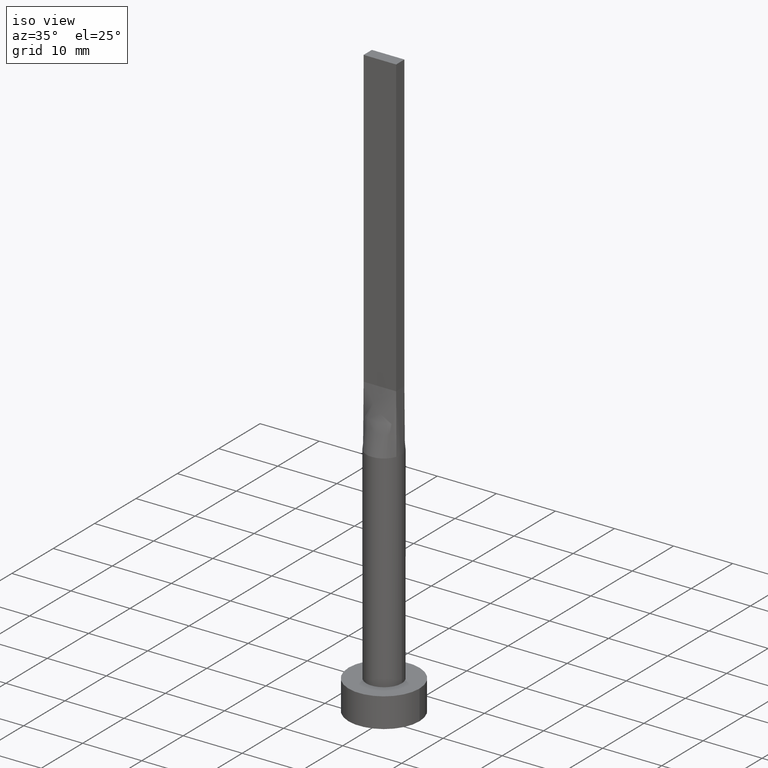
[diagram: clean part render]
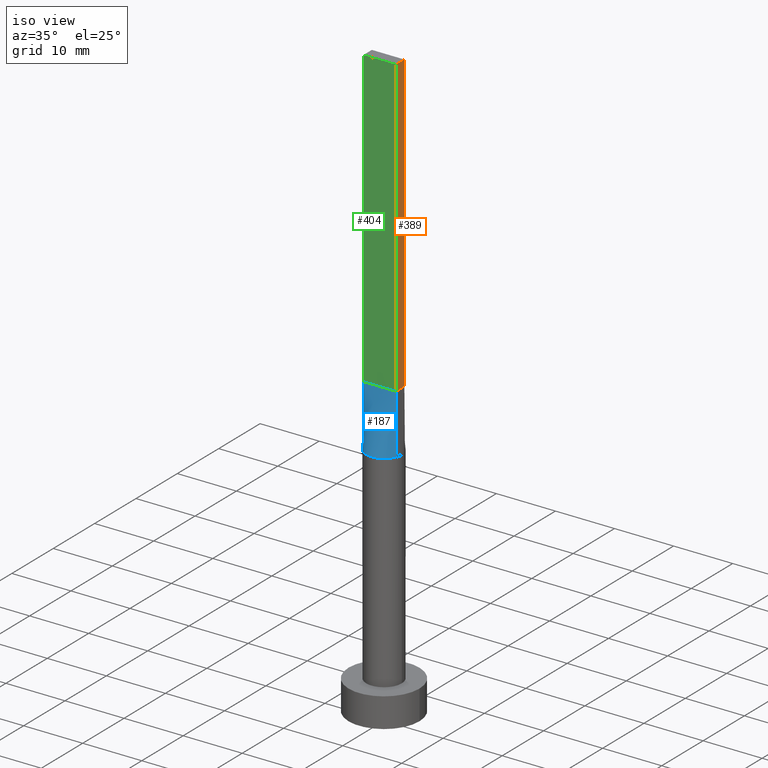
[diagram: same view with three faces highlighted in distinct colors, each labeled with its STEP entity id]
A machine part, iso view with three faces highlighted in distinct colors.
Their STEP definitions:

[orange] entity #389 — the highlighted planar face has unit normal (-1, -0, 0).
#3 = VERTEX_POINT ( 'NONE', #186 ) ;
#4 = FACE_OUTER_BOUND ( 'NONE', #559, .T. ) ;
#30 = EDGE_CURVE ( 'NONE', #494, #189, #259, .T. ) ;
#52 = VECTOR ( 'NONE', #315, 1000.000000000000000 ) ;
#59 = CARTESIAN_POINT ( 'NONE',  ( 2.750000000000000000, -0.9999999999999997780, 50.00000000000000000 ) ) ;
#72 = DIRECTION ( 'NONE',  ( -2.168404344971008868E-16, 1.000000000000000000, 0.000000000000000000 ) ) ;
#82 = CARTESIAN_POINT ( 'NONE',  ( 2.749999999999999556, 1.000000000000000000, 100.0000000000000000 ) ) ;
#86 = EDGE_CURVE ( 'NONE', #146, #3, #485, .T. ) ;
#98 = CARTESIAN_POINT ( 'NONE',  ( 2.750000000000000000, -0.9999999999999997780, 100.0000000000000000 ) ) ;
#109 = CARTESIAN_POINT ( 'NONE',  ( 2.750000000000000000, -0.9999999999999997780, 100.0000000000000000 ) ) ;
#129 = DIRECTION ( 'NONE',  ( 2.168404344971008868E-16, -1.000000000000000000, 0.000000000000000000 ) ) ;
#144 = AXIS2_PLACEMENT_3D ( 'NONE', #353, #440, #129 ) ;
#146 = VERTEX_POINT ( 'NONE', #446 ) ;
#175 = LINE ( 'NONE', #309, #52 ) ;
#179 = ORIENTED_EDGE ( 'NONE', *, *, #469, .F. ) ;
#186 = CARTESIAN_POINT ( 'NONE',  ( 2.749999999999999556, 1.000000000000000000, 50.00000000000000000 ) ) ;
#189 = VERTEX_POINT ( 'NONE', #59 ) ;
#230 = ORIENTED_EDGE ( 'NONE', *, *, #30, .T. ) ;
#235 = VECTOR ( 'NONE', #250, 1000.000000000000000 ) ;
#250 = DIRECTION ( 'NONE',  ( -0.000000000000000000, -0.000000000000000000, -1.000000000000000000 ) ) ;
#259 = LINE ( 'NONE', #98, #265 ) ;
#265 = VECTOR ( 'NONE', #445, 1000.000000000000000 ) ;
#268 = PLANE ( 'NONE',  #144 ) ;
#289 = LINE ( 'NONE', #472, #427 ) ;
#309 = CARTESIAN_POINT ( 'NONE',  ( 2.749999999999999556, 1.000000000000000000, 50.00000000000000000 ) ) ;
#315 = DIRECTION ( 'NONE',  ( -2.168404344971008868E-16, 1.000000000000000000, -0.000000000000000000 ) ) ;
#353 = CARTESIAN_POINT ( 'NONE',  ( 2.750000000000000000, -0.9999999999999997780, 100.0000000000000000 ) ) ;
#389 = ADVANCED_FACE ( 'NONE', ( #4 ), #268, .F. ) ;
#409 = ORIENTED_EDGE ( 'NONE', *, *, #527, .T. ) ;
#420 = ORIENTED_EDGE ( 'NONE', *, *, #86, .F. ) ;
#427 = VECTOR ( 'NONE', #72, 1000.000000000000000 ) ;
#440 = DIRECTION ( 'NONE',  ( -1.000000000000000000, -2.168404344971008868E-16, 0.000000000000000000 ) ) ;
#445 = DIRECTION ( 'NONE',  ( -0.000000000000000000, -0.000000000000000000, -1.000000000000000000 ) ) ;
#446 = CARTESIAN_POINT ( 'NONE',  ( 2.749999999999999556, 1.000000000000000000, 100.0000000000000000 ) ) ;
#469 = EDGE_CURVE ( 'NONE', #494, #146, #289, .T. ) ;
#472 = CARTESIAN_POINT ( 'NONE',  ( 2.750000000000000000, -0.9999999999999997780, 100.0000000000000000 ) ) ;
#485 = LINE ( 'NONE', #82, #235 ) ;
#494 = VERTEX_POINT ( 'NONE', #109 ) ;
#527 = EDGE_CURVE ( 'NONE', #189, #3, #175, .T. ) ;
#559 = EDGE_LOOP ( 'NONE', ( #409, #420, #179, #230 ) ) ;

[blue] entity #187 — the highlighted face is a freeform B-spline surface patch.
#21 = VERTEX_POINT ( 'NONE', #317 ) ;
#43 = CARTESIAN_POINT ( 'NONE',  ( 0.6998073349918603192, -2.936959335800557902, 40.00000000000000711 ) ) ;
#48 = ORIENTED_EDGE ( 'NONE', *, *, #365, .T. ) ;
#59 = CARTESIAN_POINT ( 'NONE',  ( 2.750000000000000000, -0.9999999999999997780, 50.00000000000000000 ) ) ;
#61 = CARTESIAN_POINT ( 'NONE',  ( 0.4583333333333332593, -0.9999999999999995559, 50.00000000000000000 ) ) ;
#66 = CARTESIAN_POINT ( 'NONE',  ( 2.819380270465311700, -1.025229189260112417, 40.00000000000000000 ) ) ;
#89 = CARTESIAN_POINT ( 'NONE',  ( 0.3502136323054372835, -3.000000000000000444, 39.99999999999998579 ) ) ;
#94 = LINE ( 'NONE', #579, #455 ) ;
#108 = ORIENTED_EDGE ( 'NONE', *, *, #500, .F. ) ;
#113 = ORIENTED_EDGE ( 'NONE', *, *, #488, .T. ) ;
#130 = CARTESIAN_POINT ( 'NONE',  ( -2.625980160873452540, -1.476334031700885507, 40.00000000000000711 ) ) ;
#136 = CARTESIAN_POINT ( 'NONE',  ( -1.627925520694712525, -2.539128397820340055, 39.99999999999999289 ) ) ;
#141 = CARTESIAN_POINT ( 'NONE',  ( -1.145833333333333259, -0.9999999999999995559, 50.00000000000000711 ) ) ;
#151 = CARTESIAN_POINT ( 'NONE',  ( 0.9166666666666665186, -0.9999999999999995559, 50.00000000000000000 ) ) ;
#154 = DIRECTION ( 'NONE',  ( 1.000000000000000000, -7.885106708985487801E-17, 0.000000000000000000 ) ) ;
#174 = VERTEX_POINT ( 'NONE', #266 ) ;
#176 = DIRECTION ( 'NONE',  ( -0.006937837988376364777, 0.002522850177591326286, 0.9999727504442450510 ) ) ;
#178 = CARTESIAN_POINT ( 'NONE',  ( -2.291666666666666519, -0.9999999999999995559, 50.00000000000000000 ) ) ;
#184 = CIRCLE ( 'NONE', #200, 3.000000000000000444 ) ;
#187 = ADVANCED_FACE ( 'NONE', ( #254 ), #522, .T. ) ;
#188 = CARTESIAN_POINT ( 'NONE',  ( 1.145833333333333259, -0.9999999999999995559, 50.00000000000000000 ) ) ;
#189 = VERTEX_POINT ( 'NONE', #59 ) ;
#193 = CARTESIAN_POINT ( 'NONE',  ( 2.291666666666666519, -0.9999999999999995559, 50.00000000000000000 ) ) ;
#200 = AXIS2_PLACEMENT_3D ( 'NONE', #462, #286, #421 ) ;
#209 = CARTESIAN_POINT ( 'NONE',  ( -1.604166666666666519, -0.9999999999999995559, 50.00000000000000000 ) ) ;
#224 = CARTESIAN_POINT ( 'NONE',  ( -2.750000000000000000, -0.9999999999999993339, 50.00000000000000000 ) ) ;
#227 = CARTESIAN_POINT ( 'NONE',  ( 1.338960936578149630, -2.706038443291638007, 40.00000000000000711 ) ) ;
#229 = CARTESIAN_POINT ( 'NONE',  ( 1.604166666666666741, -0.9999999999999995559, 50.00000000000000000 ) ) ;
#243 = VERTEX_POINT ( 'NONE', #476 ) ;
#254 = FACE_OUTER_BOUND ( 'NONE', #370, .T. ) ;
#260 = CARTESIAN_POINT ( 'NONE',  ( 0.2291666666666665464, -0.9999999999999995559, 50.00000000000000711 ) ) ;
#266 = CARTESIAN_POINT ( 'NONE',  ( -2.750000000000000000, -0.9999999999999993339, 50.00000000000000000 ) ) ;
#269 = CARTESIAN_POINT ( 'NONE',  ( -2.784690135232656072, -1.012614594630055764, 45.00000000000000000 ) ) ;
#271 = VECTOR ( 'NONE', #367, 1000.000000000000227 ) ;
#281 = VECTOR ( 'NONE', #154, 1000.000000000000000 ) ;
#286 = DIRECTION ( 'NONE',  ( 0.000000000000000000, 0.000000000000000000, 1.000000000000000000 ) ) ;
#290 = ORIENTED_EDGE ( 'NONE', *, *, #375, .T. ) ;
#308 = CARTESIAN_POINT ( 'NONE',  ( -0.4583333333333333703, -0.9999999999999995559, 50.00000000000000711 ) ) ;
#311 = LINE ( 'NONE', #269, #271 ) ;
#313 = CARTESIAN_POINT ( 'NONE',  ( -2.115507543051069472, -2.149870311632975373, 40.00000000000000000 ) ) ;
#317 = CARTESIAN_POINT ( 'NONE',  ( -2.819413526938078007, -1.025241406939941369, 40.00000000000000000 ) ) ;
#319 = CARTESIAN_POINT ( 'NONE',  ( -1.338960936578150518, -2.706038443291638007, 40.00000000000001421 ) ) ;
#323 = CARTESIAN_POINT ( 'NONE',  ( -2.819380270465311700, -1.025229189260111973, 40.00000000000000000 ) ) ;
#325 = CARTESIAN_POINT ( 'NONE',  ( -0.3502136323054380052, -3.000000000000000888, 40.00000000000000000 ) ) ;
#328 = CARTESIAN_POINT ( 'NONE',  ( 1.627925520694712080, -2.539128397820341831, 39.99999999999999289 ) ) ;
#334 = CARTESIAN_POINT ( 'NONE',  ( 2.750000000000000000, -0.9999999999999997780, 50.00000000000000000 ) ) ;
#365 = EDGE_CURVE ( 'NONE', #243, #189, #94, .T. ) ;
#367 = DIRECTION ( 'NONE',  ( -0.006937837988376364777, -0.002522850177591326286, -0.9999727504442450510 ) ) ;
#369 = CARTESIAN_POINT ( 'NONE',  ( -1.833333333333333037, -0.9999999999999995559, 50.00000000000000000 ) ) ;
#370 = EDGE_LOOP ( 'NONE', ( #113, #48, #108, #290 ) ) ;
#372 = CARTESIAN_POINT ( 'NONE',  ( -0.9166666666666666297, -0.9999999999999995559, 50.00000000000000711 ) ) ;
#375 = EDGE_CURVE ( 'NONE', #174, #21, #311, .T. ) ;
#378 = CARTESIAN_POINT ( 'NONE',  ( 1.833333333333333481, -0.9999999999999995559, 50.00000000000000000 ) ) ;
#419 = CARTESIAN_POINT ( 'NONE',  ( 2.314486317179579533, -1.928337902455807606, 40.00000000000000000 ) ) ;
#421 = DIRECTION ( 'NONE',  ( 1.000000000000000000, 0.000000000000000000, 0.000000000000000000 ) ) ;
#428 = CARTESIAN_POINT ( 'NONE',  ( 2.625980160873452984, -1.476334031700886618, 40.00000000000000000 ) ) ;
#442 = CARTESIAN_POINT ( 'NONE',  ( -0.2291666666666667684, -0.9999999999999995559, 50.00000000000000711 ) ) ;
#449 = CARTESIAN_POINT ( 'NONE',  ( -2.520833333333333037, -0.9999999999999993339, 50.00000000000000000 ) ) ;
#450 = CARTESIAN_POINT ( 'NONE',  ( -2.750000000000000000, -0.9999999999999993339, 50.00000000000000000 ) ) ;
#455 = VECTOR ( 'NONE', #176, 1000.000000000000227 ) ;
#459 = CARTESIAN_POINT ( 'NONE',  ( 2.739088299662391979, -1.246032108968142982, 40.00000000000000000 ) ) ;
#462 = CARTESIAN_POINT ( 'NONE',  ( 0.000000000000000000, 0.000000000000000000, 40.00000000000000000 ) ) ;
#476 = CARTESIAN_POINT ( 'NONE',  ( 2.819430526142641558, -1.025247683279450817, 40.00000000000000000 ) ) ;
#488 = EDGE_CURVE ( 'NONE', #21, #243, #184, .T. ) ;
#500 = EDGE_CURVE ( 'NONE', #174, #189, #558, .T. ) ;
#504 = CARTESIAN_POINT ( 'NONE',  ( 2.115507543051068140, -2.149870311632976705, 39.99999999999998579 ) ) ;
#522 = B_SPLINE_SURFACE_WITH_KNOTS ( 'NONE', 3, 1, ( 
 ( #323, #224 ),
 ( #538, #449 ),
 ( #130, #178 ),
 ( #548, #369 ),
 ( #313, #209 ),
 ( #136, #141 ),
 ( #319, #372 ),
 ( #551, #308 ),
 ( #325, #442 ),
 ( #89, #260 ),
 ( #43, #61 ),
 ( #227, #151 ),
 ( #328, #188 ),
 ( #504, #229 ),
 ( #419, #378 ),
 ( #428, #193 ),
 ( #459, #555 ),
 ( #66, #334 ) ),
 .UNSPECIFIED., .F., .F., .F.,
 ( 4, 2, 2, 2, 2, 2, 2, 2, 4 ),
 ( 2, 2 ),
 ( 0.000000000000000000, 0.1250000000000000000, 0.2500000000000000000, 0.3750000000000000000, 0.5000000000000000000, 0.6250000000000000000, 0.7500000000000000000, 0.8750000000000000000, 1.000000000000000000 ),
 ( 0.000000000000000000, 1.000000000000000000 ),
 .UNSPECIFIED. ) ;
#538 = CARTESIAN_POINT ( 'NONE',  ( -2.739088299662391979, -1.246032108968140983, 39.99999999999999289 ) ) ;
#548 = CARTESIAN_POINT ( 'NONE',  ( -2.314486317179578645, -1.928337902455806496, 40.00000000000000000 ) ) ;
#551 = CARTESIAN_POINT ( 'NONE',  ( -0.6998073349918614294, -2.936959335800558346, 40.00000000000000711 ) ) ;
#555 = CARTESIAN_POINT ( 'NONE',  ( 2.520833333333333037, -0.9999999999999995559, 50.00000000000000000 ) ) ;
#558 = LINE ( 'NONE', #450, #281 ) ;
#579 = CARTESIAN_POINT ( 'NONE',  ( 2.784690135232656072, -1.012614594630056208, 45.00000000000000000 ) ) ;

[green] entity #404 — the highlighted planar face has unit normal (0, 1, -0).
#30 = EDGE_CURVE ( 'NONE', #494, #189, #259, .T. ) ;
#51 = ORIENTED_EDGE ( 'NONE', *, *, #500, .T. ) ;
#59 = CARTESIAN_POINT ( 'NONE',  ( 2.750000000000000000, -0.9999999999999997780, 50.00000000000000000 ) ) ;
#69 = CARTESIAN_POINT ( 'NONE',  ( -2.750000000000000000, -0.9999999999999993339, 100.0000000000000000 ) ) ;
#74 = ORIENTED_EDGE ( 'NONE', *, *, #30, .F. ) ;
#76 = VECTOR ( 'NONE', #431, 1000.000000000000000 ) ;
#83 = LINE ( 'NONE', #400, #76 ) ;
#98 = CARTESIAN_POINT ( 'NONE',  ( 2.750000000000000000, -0.9999999999999997780, 100.0000000000000000 ) ) ;
#109 = CARTESIAN_POINT ( 'NONE',  ( 2.750000000000000000, -0.9999999999999997780, 100.0000000000000000 ) ) ;
#149 = PLANE ( 'NONE',  #256 ) ;
#154 = DIRECTION ( 'NONE',  ( 1.000000000000000000, -7.885106708985487801E-17, 0.000000000000000000 ) ) ;
#174 = VERTEX_POINT ( 'NONE', #266 ) ;
#189 = VERTEX_POINT ( 'NONE', #59 ) ;
#226 = EDGE_CURVE ( 'NONE', #412, #174, #415, .T. ) ;
#234 = ORIENTED_EDGE ( 'NONE', *, *, #226, .T. ) ;
#236 = DIRECTION ( 'NONE',  ( 7.885106708985487801E-17, 1.000000000000000000, -0.000000000000000000 ) ) ;
#237 = DIRECTION ( 'NONE',  ( -0.000000000000000000, -0.000000000000000000, -1.000000000000000000 ) ) ;
#256 = AXIS2_PLACEMENT_3D ( 'NONE', #280, #236, #287 ) ;
#259 = LINE ( 'NONE', #98, #265 ) ;
#265 = VECTOR ( 'NONE', #445, 1000.000000000000000 ) ;
#266 = CARTESIAN_POINT ( 'NONE',  ( -2.750000000000000000, -0.9999999999999993339, 50.00000000000000000 ) ) ;
#280 = CARTESIAN_POINT ( 'NONE',  ( -2.750000000000000000, -0.9999999999999993339, 100.0000000000000000 ) ) ;
#281 = VECTOR ( 'NONE', #154, 1000.000000000000000 ) ;
#287 = DIRECTION ( 'NONE',  ( -1.000000000000000000, 7.885106708985487801E-17, 0.000000000000000000 ) ) ;
#300 = EDGE_CURVE ( 'NONE', #412, #494, #83, .T. ) ;
#320 = ORIENTED_EDGE ( 'NONE', *, *, #300, .F. ) ;
#351 = VECTOR ( 'NONE', #237, 1000.000000000000000 ) ;
#400 = CARTESIAN_POINT ( 'NONE',  ( -2.750000000000000000, -0.9999999999999993339, 100.0000000000000000 ) ) ;
#404 = ADVANCED_FACE ( 'NONE', ( #490 ), #149, .F. ) ;
#412 = VERTEX_POINT ( 'NONE', #430 ) ;
#415 = LINE ( 'NONE', #69, #351 ) ;
#430 = CARTESIAN_POINT ( 'NONE',  ( -2.750000000000000000, -0.9999999999999993339, 100.0000000000000000 ) ) ;
#431 = DIRECTION ( 'NONE',  ( 1.000000000000000000, -7.885106708985487801E-17, 0.000000000000000000 ) ) ;
#445 = DIRECTION ( 'NONE',  ( -0.000000000000000000, -0.000000000000000000, -1.000000000000000000 ) ) ;
#450 = CARTESIAN_POINT ( 'NONE',  ( -2.750000000000000000, -0.9999999999999993339, 50.00000000000000000 ) ) ;
#460 = EDGE_LOOP ( 'NONE', ( #51, #74, #320, #234 ) ) ;
#490 = FACE_OUTER_BOUND ( 'NONE', #460, .T. ) ;
#494 = VERTEX_POINT ( 'NONE', #109 ) ;
#500 = EDGE_CURVE ( 'NONE', #174, #189, #558, .T. ) ;
#558 = LINE ( 'NONE', #450, #281 ) ;